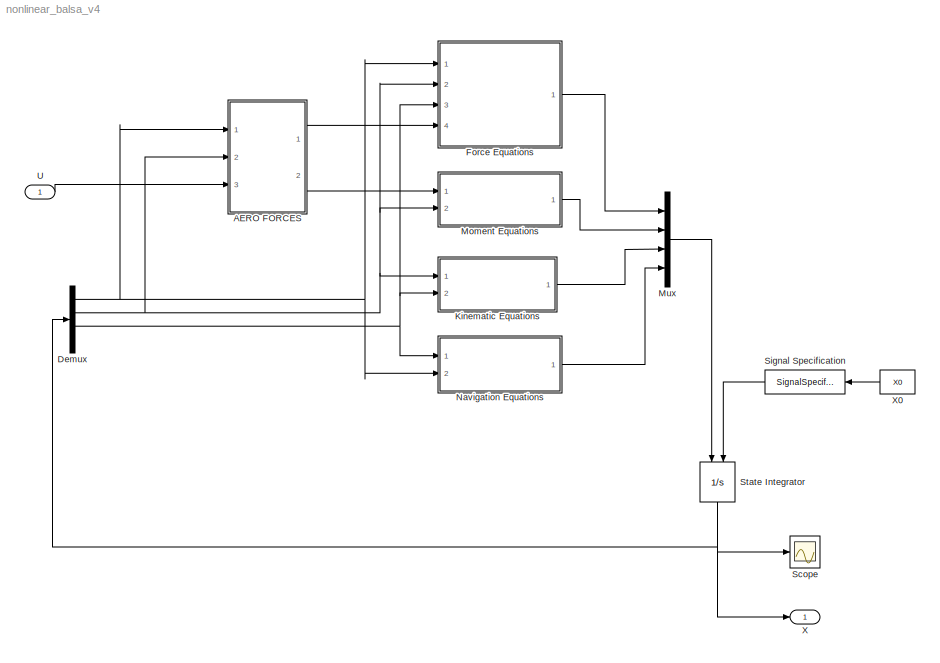
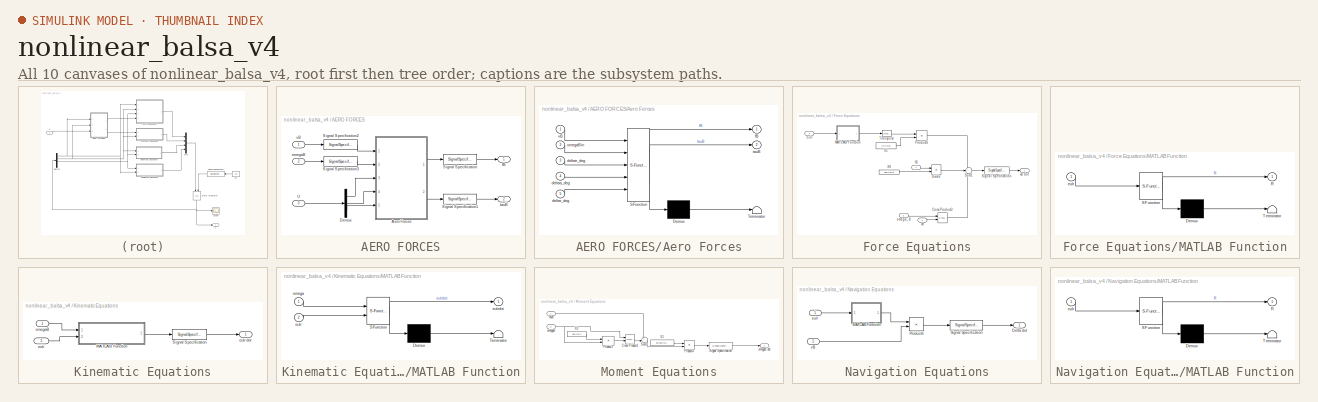
[diagram: thumbnail index - all 10 canvases of the model, root first then tree order]
MODEL nonlinear_balsa_v4
KIND model
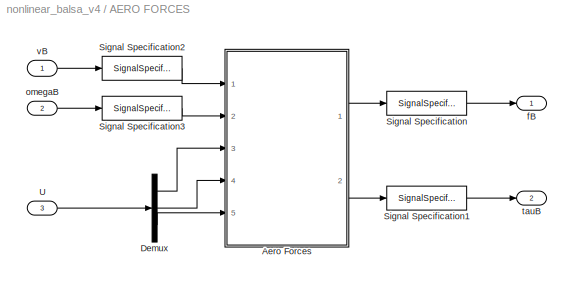
BLOCK [SubSystem] AERO FORCES
  FunctionWithSeparateData = off
  MaskHideContents = off
  MinAlgLoopOccurrences = off
  Opaque = off
  Ports = [3, 2]
  PropExecContextOutsideSubsystem = off
  RTWSystemCode = Auto
  RequestExecContextInheritance = off
  SID = 3914
BLOCK [SubSystem] AERO FORCES/Aero Forces
  ErrorFcn = Stateflow.Translate.translate
  FunctionWithSeparateData = off
  MaskDescription = Embedded MATLAB block
  MaskDisplay = bgColor = Simulink.Root.ColorString2Rgb(get_param(gcbh, 'BackgroundColor')); image(imread('private/eml_membrane_16.png','png','BackgroundColor',bgColor(1:3)),'center'); disp([10 10 'aero_forces_v1']);
  MaskHideContents = off
  MaskIconFrame = on
  MaskIconOpaque = off
  MaskIconRotate = none
  MaskIconUnits = normalized
  MaskPortRotate = default
  MaskSelfModifiable = on
  MaskType = Stateflow
  MinAlgLoopOccurrences = off
  Opaque = off
  PermitHierarchicalResolution = ExplicitOnly
  Ports = [5, 2]
  PropExecContextOutsideSubsystem = off
  RTWSystemCode = Auto
  RequestExecContextInheritance = off
  SFBlockType = MATLAB Function
  SID = 3991
  TreatAsAtomicUnit = on
BLOCK [Demux] AERO FORCES/Aero Forces/ Demux 
  Outputs = 1
  Ports = [1, 1]
  SID = 3991::15
BLOCK [S-Function] AERO FORCES/Aero Forces/ SFunction 
  EnableBusSupport = on
  FunctionName = sf_sfun
  PortCounts = [5 3]
  Ports = [5, 3]
  SID = 3991::14
  Tag = Stateflow S-Function nonlinear_balsa_v4 5
BLOCK [Terminator] AERO FORCES/Aero Forces/ Terminator 
  SID = 3991::17
BLOCK [Inport] AERO FORCES/Aero Forces/deltaa_deg
  IconDisplay = Port number
  Port = 4
  SID = 3991::33
BLOCK [Inport] AERO FORCES/Aero Forces/deltae_deg
  IconDisplay = Port number
  Port = 3
  SID = 3991::32
BLOCK [Inport] AERO FORCES/Aero Forces/deltar_deg
  IconDisplay = Port number
  Port = 5
  SID = 3991::34
BLOCK [Outport] AERO FORCES/Aero Forces/fB
  IconDisplay = Port number
  SID = 3991::5
BLOCK [Inport] AERO FORCES/Aero Forces/omegaBin
  IconDisplay = Port number
  Port = 2
  SID = 3991::31
BLOCK [Outport] AERO FORCES/Aero Forces/tauB
  IconDisplay = Port number
  Port = 2
  SID = 3991::24
BLOCK [Inport] AERO FORCES/Aero Forces/vB
  IconDisplay = Port number
  SID = 3991::30
BLOCK [Demux] AERO FORCES/Demux
  DisplayOption = bar
  Outputs = 3
  Ports = [1, 3]
  SID = 4018
BLOCK [SignalSpecification] AERO FORCES/Signal Specification
  Dimensions = [3,1]
  SID = 4013
BLOCK [SignalSpecification] AERO FORCES/Signal Specification1
  Dimensions = [3,1]
  SID = 4014
BLOCK [SignalSpecification] AERO FORCES/Signal Specification2
  Dimensions = [3,1]
  SID = 4015
BLOCK [SignalSpecification] AERO FORCES/Signal Specification3
  Dimensions = [3,1]
  SID = 4016
BLOCK [Inport] AERO FORCES/U
  IconDisplay = Port number
  Port = 3
  SID = 4019
BLOCK [Outport] AERO FORCES/fB
  IconDisplay = Port number
  SID = 3997
BLOCK [Inport] AERO FORCES/omegaB
  IconDisplay = Port number
  Port = 2
  SID = 3915
BLOCK [Outport] AERO FORCES/tauB
  IconDisplay = Port number
  Port = 2
  SID = 3998
BLOCK [Inport] AERO FORCES/vB
  IconDisplay = Port number
  SID = 3972
BLOCK [Demux] Demux
  DisplayOption = bar
  Outputs = [3,3,3,3]
  Ports = [1, 4]
  SID = 3929
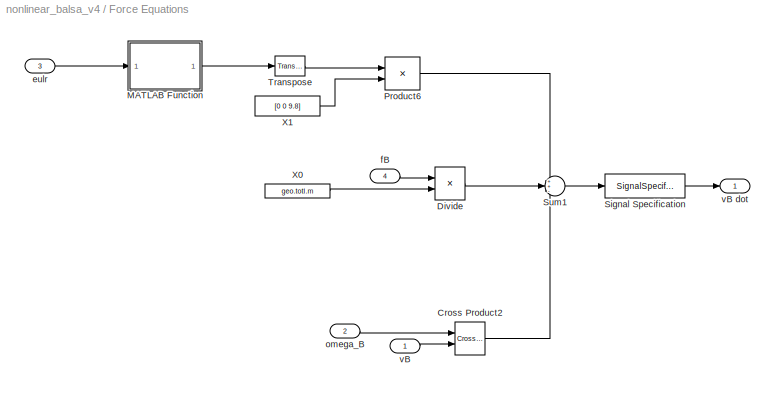
BLOCK [SubSystem] Force Equations
  FunctionWithSeparateData = off
  MaskHideContents = off
  MinAlgLoopOccurrences = off
  Opaque = off
  Ports = [4, 1]
  PropExecContextOutsideSubsystem = off
  RTWSystemCode = Auto
  RequestExecContextInheritance = off
  SID = 2808
BLOCK [Reference] Force Equations/Cross Product2  REF=vrlib/Utilities/Cross Product
  Ports = [2, 1]
  SID = 2818
  SourceBlock = vrlib/Utilities/Cross Product
  SourceType = Cross Product
BLOCK [Product] Force Equations/Divide
  InputSameDT = off
  Inputs = */
  OutDataTypeStr = Inherit: Inherit via internal rule
  Ports = [2, 1]
  RndMeth = Floor
  SID = 2819
  SaturateOnIntegerOverflow = off
BLOCK [SubSystem] Force Equations/MATLAB Function
  ErrorFcn = Stateflow.Translate.translate
  FunctionWithSeparateData = off
  MaskDescription = Embedded MATLAB block
  MaskDisplay = bgColor = Simulink.Root.ColorString2Rgb(get_param(gcbh, 'BackgroundColor')); image(imread('private/eml_membrane_16.png','png','BackgroundColor',bgColor(1:3)),'center'); disp([10 10 'eulr2R']);
  MaskHideContents = off
  MaskIconFrame = on
  MaskIconOpaque = off
  MaskIconRotate = none
  MaskIconUnits = normalized
  MaskPortRotate = default
  MaskSelfModifiable = on
  MaskType = Stateflow
  MinAlgLoopOccurrences = off
  Opaque = off
  PermitHierarchicalResolution = ExplicitOnly
  Ports = [1, 1]
  PropExecContextOutsideSubsystem = off
  RTWSystemCode = Auto
  RequestExecContextInheritance = off
  SFBlockType = MATLAB Function
  SID = 3984
  TreatAsAtomicUnit = on
BLOCK [Demux] Force Equations/MATLAB Function/ Demux 
  Outputs = 1
  Ports = [1, 1]
  SID = 3984::15
BLOCK [S-Function] Force Equations/MATLAB Function/ SFunction 
  EnableBusSupport = on
  FunctionName = sf_sfun
  PortCounts = [1 2]
  Ports = [1, 2]
  SID = 3984::14
  Tag = Stateflow S-Function nonlinear_balsa_v4 1
BLOCK [Terminator] Force Equations/MATLAB Function/ Terminator 
  SID = 3984::17
BLOCK [Outport] Force Equations/MATLAB Function/R
  IconDisplay = Port number
  SID = 3984::5
BLOCK [Inport] Force Equations/MATLAB Function/eulr
  IconDisplay = Port number
  SID = 3984::1
BLOCK [Product] Force Equations/Product6
  InputSameDT = off
  Multiplication = Matrix(*)
  OutDataTypeStr = Inherit: Inherit via internal rule
  Ports = [2, 1]
  SID = 2823
  SaturateOnIntegerOverflow = off
BLOCK [SignalSpecification] Force Equations/Signal Specification
  Dimensions = [3,1]
  SID = 4007
BLOCK [Sum] Force Equations/Sum1
  IconShape = round
  InputSameDT = off
  Inputs = ++-
  OutDataTypeStr = Inherit: Inherit via internal rule
  Ports = [3, 1]
  SID = 2840
  SaturateOnIntegerOverflow = off
BLOCK [Reference] Force Equations/Transpose  REF=dspmtrx3/Transpose
  Hermitian = off
  Ports = [1, 1]
  SID = 3894
  SourceBlock = dspmtrx3/Transpose
  SourceType = Transpose
  overflowFlag = off
BLOCK [Constant] Force Equations/X0
  SID = 3913
  Value = geo.totl.m
BLOCK [Constant] Force Equations/X1
  SID = 3930
  Value = [0 0 9.8]
BLOCK [Inport] Force Equations/eulr
  IconDisplay = Port number
  Port = 3
  SID = 2811
BLOCK [Inport] Force Equations/fB
  IconDisplay = Port number
  Port = 4
  SID = 2813
BLOCK [Inport] Force Equations/omega_B
  IconDisplay = Port number
  Port = 2
  SID = 2816
BLOCK [Inport] Force Equations/vB
  IconDisplay = Port number
  SID = 2814
BLOCK [Outport] Force Equations/vB dot
  IconDisplay = Port number
  SID = 2850
BLOCK [SubSystem] Kinematic Equations
  FunctionWithSeparateData = off
  MaskHideContents = off
  MinAlgLoopOccurrences = off
  Opaque = off
  Ports = [2, 1]
  PropExecContextOutsideSubsystem = off
  RTWSystemCode = Auto
  RequestExecContextInheritance = off
  SID = 3932
BLOCK [SubSystem] Kinematic Equations/MATLAB Function
  ErrorFcn = Stateflow.Translate.translate
  FunctionWithSeparateData = off
  MaskDescription = Embedded MATLAB block
  MaskDisplay = bgColor = Simulink.Root.ColorString2Rgb(get_param(gcbh, 'BackgroundColor')); image(imread('private/eml_membrane_16.png','png','BackgroundColor',bgColor(1:3)),'center'); disp([10 10 'omega2eulrdot']);
  MaskHideContents = off
  MaskIconFrame = on
  MaskIconOpaque = off
  MaskIconRotate = none
  MaskIconUnits = normalized
  MaskPortRotate = default
  MaskSelfModifiable = on
  MaskType = Stateflow
  MinAlgLoopOccurrences = off
  Opaque = off
  PermitHierarchicalResolution = ExplicitOnly
  Ports = [2, 1]
  PropExecContextOutsideSubsystem = off
  RTWSystemCode = Auto
  RequestExecContextInheritance = off
  SFBlockType = MATLAB Function
  SID = 3987
  TreatAsAtomicUnit = on
BLOCK [Demux] Kinematic Equations/MATLAB Function/ Demux 
  Outputs = 1
  Ports = [1, 1]
  SID = 3987::15
BLOCK [S-Function] Kinematic Equations/MATLAB Function/ SFunction 
  EnableBusSupport = on
  FunctionName = sf_sfun
  PortCounts = [2 2]
  Ports = [2, 2]
  SID = 3987::14
  Tag = Stateflow S-Function nonlinear_balsa_v4 3
BLOCK [Terminator] Kinematic Equations/MATLAB Function/ Terminator 
  SID = 3987::17
BLOCK [Inport] Kinematic Equations/MATLAB Function/eulr
  IconDisplay = Port number
  Port = 2
  SID = 3987::1
BLOCK [Outport] Kinematic Equations/MATLAB Function/eulrdot
  IconDisplay = Port number
  SID = 3987::5
BLOCK [Inport] Kinematic Equations/MATLAB Function/omega
  IconDisplay = Port number
  SID = 3987::18
BLOCK [SignalSpecification] Kinematic Equations/Signal Specification
  Dimensions = [3,1]
  SID = 4006
BLOCK [Inport] Kinematic Equations/eulr
  IconDisplay = Port number
  Port = 2
  SID = 3934
BLOCK [Outport] Kinematic Equations/eulr dot
  IconDisplay = Port number
  SID = 3964
BLOCK [Inport] Kinematic Equations/omegaB
  IconDisplay = Port number
  SID = 3933
BLOCK [SubSystem] Moment Equations
  FunctionWithSeparateData = off
  MaskHideContents = off
  MinAlgLoopOccurrences = off
  Opaque = off
  Ports = [2, 1]
  PropExecContextOutsideSubsystem = off
  RTWSystemCode = Auto
  RequestExecContextInheritance = off
  SID = 2851
BLOCK [Reference] Moment Equations/Cross Product1  REF=vrlib/Utilities/Cross Product
  Ports = [2, 1]
  SID = 2856
  SourceBlock = vrlib/Utilities/Cross Product
  SourceType = Cross Product
BLOCK [Product] Moment Equations/Product3
  InputSameDT = off
  Multiplication = Matrix(*)
  OutDataTypeStr = Inherit: Inherit via internal rule
  Ports = [2, 1]
  SID = 2857
  SaturateOnIntegerOverflow = off
BLOCK [Product] Moment Equations/Product4
  InputSameDT = off
  Multiplication = Matrix(*)
  OutDataTypeStr = Inherit: Inherit via internal rule
  Ports = [2, 1]
  SID = 2858
  SaturateOnIntegerOverflow = off
BLOCK [SignalSpecification] Moment Equations/Signal Specification
  Dimensions = [3,1]
  SID = 4008
BLOCK [Sum] Moment Equations/Sum3
  IconShape = round
  InputSameDT = off
  Inputs = +-|
  OutDataTypeStr = Inherit: Inherit via internal rule
  Ports = [2, 1]
  SID = 2859
  SaturateOnIntegerOverflow = off
BLOCK [Constant] Moment Equations/X0
  SID = 3891
  Value = geo.totl.J
BLOCK [Constant] Moment Equations/X1
  SID = 3892
  Value = inv(geo.totl.J)
BLOCK [Inport] Moment Equations/omegaB
  IconDisplay = Port number
  Port = 2
  SID = 2855
BLOCK [Outport] Moment Equations/omegaB dot
  IconDisplay = Port number
  SID = 2860
BLOCK [Inport] Moment Equations/tauB
  IconDisplay = Port number
  SID = 2852
BLOCK [Mux] Mux
  DisplayOption = bar
  Inputs = [3,3,3,3]
  Ports = [4, 1]
  SID = 3928
BLOCK [SubSystem] Navigation Equations
  FunctionWithSeparateData = off
  MaskHideContents = off
  MinAlgLoopOccurrences = off
  Opaque = off
  Ports = [2, 1]
  PropExecContextOutsideSubsystem = off
  RTWSystemCode = Auto
  RequestExecContextInheritance = off
  SID = 3906
BLOCK [Outport] Navigation Equations/Delta dot
  IconDisplay = Port number
  SID = 3911
BLOCK [SubSystem] Navigation Equations/MATLAB Function
  ErrorFcn = Stateflow.Translate.translate
  FunctionWithSeparateData = off
  MaskDescription = Embedded MATLAB block
  MaskDisplay = bgColor = Simulink.Root.ColorString2Rgb(get_param(gcbh, 'BackgroundColor')); image(imread('private/eml_membrane_16.png','png','BackgroundColor',bgColor(1:3)),'center'); disp([10 10 'eulr2R']);
  MaskHideContents = off
  MaskIconFrame = on
  MaskIconOpaque = off
  MaskIconRotate = none
  MaskIconUnits = normalized
  MaskPortRotate = default
  MaskSelfModifiable = on
  MaskType = Stateflow
  MinAlgLoopOccurrences = off
  Opaque = off
  PermitHierarchicalResolution = ExplicitOnly
  Ports = [1, 1]
  PropExecContextOutsideSubsystem = off
  RTWSystemCode = Auto
  RequestExecContextInheritance = off
  SFBlockType = MATLAB Function
  SID = 3989
  TreatAsAtomicUnit = on
BLOCK [Demux] Navigation Equations/MATLAB Function/ Demux 
  Outputs = 1
  Ports = [1, 1]
  SID = 3989::15
BLOCK [S-Function] Navigation Equations/MATLAB Function/ SFunction 
  EnableBusSupport = on
  FunctionName = sf_sfun
  PortCounts = [1 2]
  Ports = [1, 2]
  SID = 3989::14
  Tag = Stateflow S-Function nonlinear_balsa_v4 4
BLOCK [Terminator] Navigation Equations/MATLAB Function/ Terminator 
  SID = 3989::17
BLOCK [Outport] Navigation Equations/MATLAB Function/R
  IconDisplay = Port number
  SID = 3989::5
BLOCK [Inport] Navigation Equations/MATLAB Function/eulr
  IconDisplay = Port number
  SID = 3989::1
BLOCK [Product] Navigation Equations/Product6
  InputSameDT = off
  Multiplication = Matrix(*)
  OutDataTypeStr = Inherit: Inherit via internal rule
  Ports = [2, 1]
  SID = 3990
  SaturateOnIntegerOverflow = off
BLOCK [SignalSpecification] Navigation Equations/Signal Specification
  Dimensions = [3,1]
  SID = 4009
BLOCK [Inport] Navigation Equations/eulr
  IconDisplay = Port number
  SID = 3988
BLOCK [Inport] Navigation Equations/vB
  IconDisplay = Port number
  Port = 2
  SID = 3908
BLOCK [Scope] Scope
  DataFormat = StructureWithTime
  Floating = off
  NumInputPorts = 1
  Ports = [1]
  SID = 3931
  SampleTime = 0
BLOCK [SignalSpecification] Signal Specification
  Dimensions = [12,1]
  SID = 4012
BLOCK [Integrator] State Integrator
  InitialConditionSource = external
  Ports = [2, 1]
  SID = 3926
BLOCK [Inport] U
  IconDisplay = Port number
  SID = 4020
BLOCK [Outport] X
  IconDisplay = Port number
  SID = 4017
BLOCK [Constant] X0
  SID = 3927
  Value = X0
LINE AERO FORCES/Aero Forces/ Demux :1 -> AERO FORCES/Aero Forces/ Terminator :1
LINE AERO FORCES/Aero Forces/ SFunction :1 -> AERO FORCES/Aero Forces/ Demux :1
LINE AERO FORCES/Aero Forces/ SFunction :2 -> AERO FORCES/Aero Forces/fB:1
LINE AERO FORCES/Aero Forces/ SFunction :3 -> AERO FORCES/Aero Forces/tauB:1
LINE AERO FORCES/Aero Forces/deltaa_deg:1 -> AERO FORCES/Aero Forces/ SFunction :4
LINE AERO FORCES/Aero Forces/deltae_deg:1 -> AERO FORCES/Aero Forces/ SFunction :3
LINE AERO FORCES/Aero Forces/deltar_deg:1 -> AERO FORCES/Aero Forces/ SFunction :5
LINE AERO FORCES/Aero Forces/omegaBin:1 -> AERO FORCES/Aero Forces/ SFunction :2
LINE AERO FORCES/Aero Forces/vB:1 -> AERO FORCES/Aero Forces/ SFunction :1
LINE AERO FORCES/Aero Forces:1 -> AERO FORCES/Signal Specification:1
LINE AERO FORCES/Aero Forces:2 -> AERO FORCES/Signal Specification1:1
LINE AERO FORCES/Demux:1 -> AERO FORCES/Aero Forces:3
LINE AERO FORCES/Demux:2 -> AERO FORCES/Aero Forces:4
LINE AERO FORCES/Demux:3 -> AERO FORCES/Aero Forces:5
LINE AERO FORCES/Signal Specification1:1 -> AERO FORCES/tauB:1
LINE AERO FORCES/Signal Specification2:1 -> AERO FORCES/Aero Forces:1
LINE AERO FORCES/Signal Specification3:1 -> AERO FORCES/Aero Forces:2
LINE AERO FORCES/Signal Specification:1 -> AERO FORCES/fB:1
LINE AERO FORCES/U:1 -> AERO FORCES/Demux:1
LINE AERO FORCES/omegaB:1 -> AERO FORCES/Signal Specification3:1
LINE AERO FORCES/vB:1 -> AERO FORCES/Signal Specification2:1
LINE AERO FORCES:1 -> Force Equations:4
LINE AERO FORCES:2 -> Moment Equations:1
NET Demux:1 -> AERO FORCES:1, Force Equations:1, Navigation Equations:2
NET Demux:2 -> AERO FORCES:2, Force Equations:2, Kinematic Equations:1, Moment Equations:2
NET Demux:3 -> Force Equations:3, Kinematic Equations:2, Navigation Equations:1
LINE Force Equations/Cross Product2:1 -> Force Equations/Sum1:3
LINE Force Equations/Divide:1 -> Force Equations/Sum1:2
LINE Force Equations/MATLAB Function/ Demux :1 -> Force Equations/MATLAB Function/ Terminator :1
LINE Force Equations/MATLAB Function/ SFunction :1 -> Force Equations/MATLAB Function/ Demux :1
LINE Force Equations/MATLAB Function/ SFunction :2 -> Force Equations/MATLAB Function/R:1
LINE Force Equations/MATLAB Function/eulr:1 -> Force Equations/MATLAB Function/ SFunction :1
LINE Force Equations/MATLAB Function:1 -> Force Equations/Transpose:1
LINE Force Equations/Product6:1 -> Force Equations/Sum1:1
LINE Force Equations/Signal Specification:1 -> Force Equations/vB dot:1
LINE Force Equations/Sum1:1 -> Force Equations/Signal Specification:1
LINE Force Equations/Transpose:1 -> Force Equations/Product6:1
LINE Force Equations/X0:1 -> Force Equations/Divide:2
LINE Force Equations/X1:1 -> Force Equations/Product6:2
LINE Force Equations/eulr:1 -> Force Equations/MATLAB Function:1
LINE Force Equations/fB:1 -> Force Equations/Divide:1
LINE Force Equations/omega_B:1 -> Force Equations/Cross Product2:1
LINE Force Equations/vB:1 -> Force Equations/Cross Product2:2
LINE Force Equations:1 -> Mux:1
LINE Kinematic Equations/MATLAB Function/ Demux :1 -> Kinematic Equations/MATLAB Function/ Terminator :1
LINE Kinematic Equations/MATLAB Function/ SFunction :1 -> Kinematic Equations/MATLAB Function/ Demux :1
LINE Kinematic Equations/MATLAB Function/ SFunction :2 -> Kinematic Equations/MATLAB Function/eulrdot:1
LINE Kinematic Equations/MATLAB Function/eulr:1 -> Kinematic Equations/MATLAB Function/ SFunction :2
LINE Kinematic Equations/MATLAB Function/omega:1 -> Kinematic Equations/MATLAB Function/ SFunction :1
LINE Kinematic Equations/MATLAB Function:1 -> Kinematic Equations/Signal Specification:1
LINE Kinematic Equations/Signal Specification:1 -> Kinematic Equations/eulr dot:1
LINE Kinematic Equations/eulr:1 -> Kinematic Equations/MATLAB Function:2
LINE Kinematic Equations/omegaB:1 -> Kinematic Equations/MATLAB Function:1
LINE Kinematic Equations:1 -> Mux:3
LINE Moment Equations/Cross Product1:1 -> Moment Equations/Sum3:2
LINE Moment Equations/Product3:1 -> Moment Equations/Cross Product1:2
LINE Moment Equations/Product4:1 -> Moment Equations/Signal Specification:1
LINE Moment Equations/Signal Specification:1 -> Moment Equations/omegaB dot:1
LINE Moment Equations/Sum3:1 -> Moment Equations/Product4:2
LINE Moment Equations/X0:1 -> Moment Equations/Product3:1
LINE Moment Equations/X1:1 -> Moment Equations/Product4:1
NET Moment Equations/omegaB:1 -> Moment Equations/Cross Product1:1, Moment Equations/Product3:2
LINE Moment Equations/tauB:1 -> Moment Equations/Sum3:1
LINE Moment Equations:1 -> Mux:2
LINE Mux:1 -> State Integrator:1
LINE Navigation Equations/MATLAB Function/ Demux :1 -> Navigation Equations/MATLAB Function/ Terminator :1
LINE Navigation Equations/MATLAB Function/ SFunction :1 -> Navigation Equations/MATLAB Function/ Demux :1
LINE Navigation Equations/MATLAB Function/ SFunction :2 -> Navigation Equations/MATLAB Function/R:1
LINE Navigation Equations/MATLAB Function/eulr:1 -> Navigation Equations/MATLAB Function/ SFunction :1
LINE Navigation Equations/MATLAB Function:1 -> Navigation Equations/Product6:1
LINE Navigation Equations/Product6:1 -> Navigation Equations/Signal Specification:1
LINE Navigation Equations/Signal Specification:1 -> Navigation Equations/Delta dot:1
LINE Navigation Equations/eulr:1 -> Navigation Equations/MATLAB Function:1
LINE Navigation Equations/vB:1 -> Navigation Equations/Product6:2
LINE Navigation Equations:1 -> Mux:4
LINE Signal Specification:1 -> State Integrator:2
NET State Integrator:1 -> Demux:1, Scope:1, X:1
LINE U:1 -> AERO FORCES:3
LINE X0:1 -> Signal Specification:1
note: NET lines group one-source signal fan-out (src -> all destinations, sorted); 1:1 wires keep LINE
CHART Force Equations/MATLAB Function states=1 transitions=1
  STATE_LABEL 'eML_blk_kernel()'
CHART Kinematic Equations/MATLAB Function states=1 transitions=1
  STATE_LABEL 'eML_blk_kernel()'
CHART Navigation Equations/MATLAB Function states=1 transitions=1
  STATE_LABEL 'eML_blk_kernel()'
CHART AERO FORCES/Aero Forces states=1 transitions=1
  STATE_LABEL 'eML_blk_kernel()'
